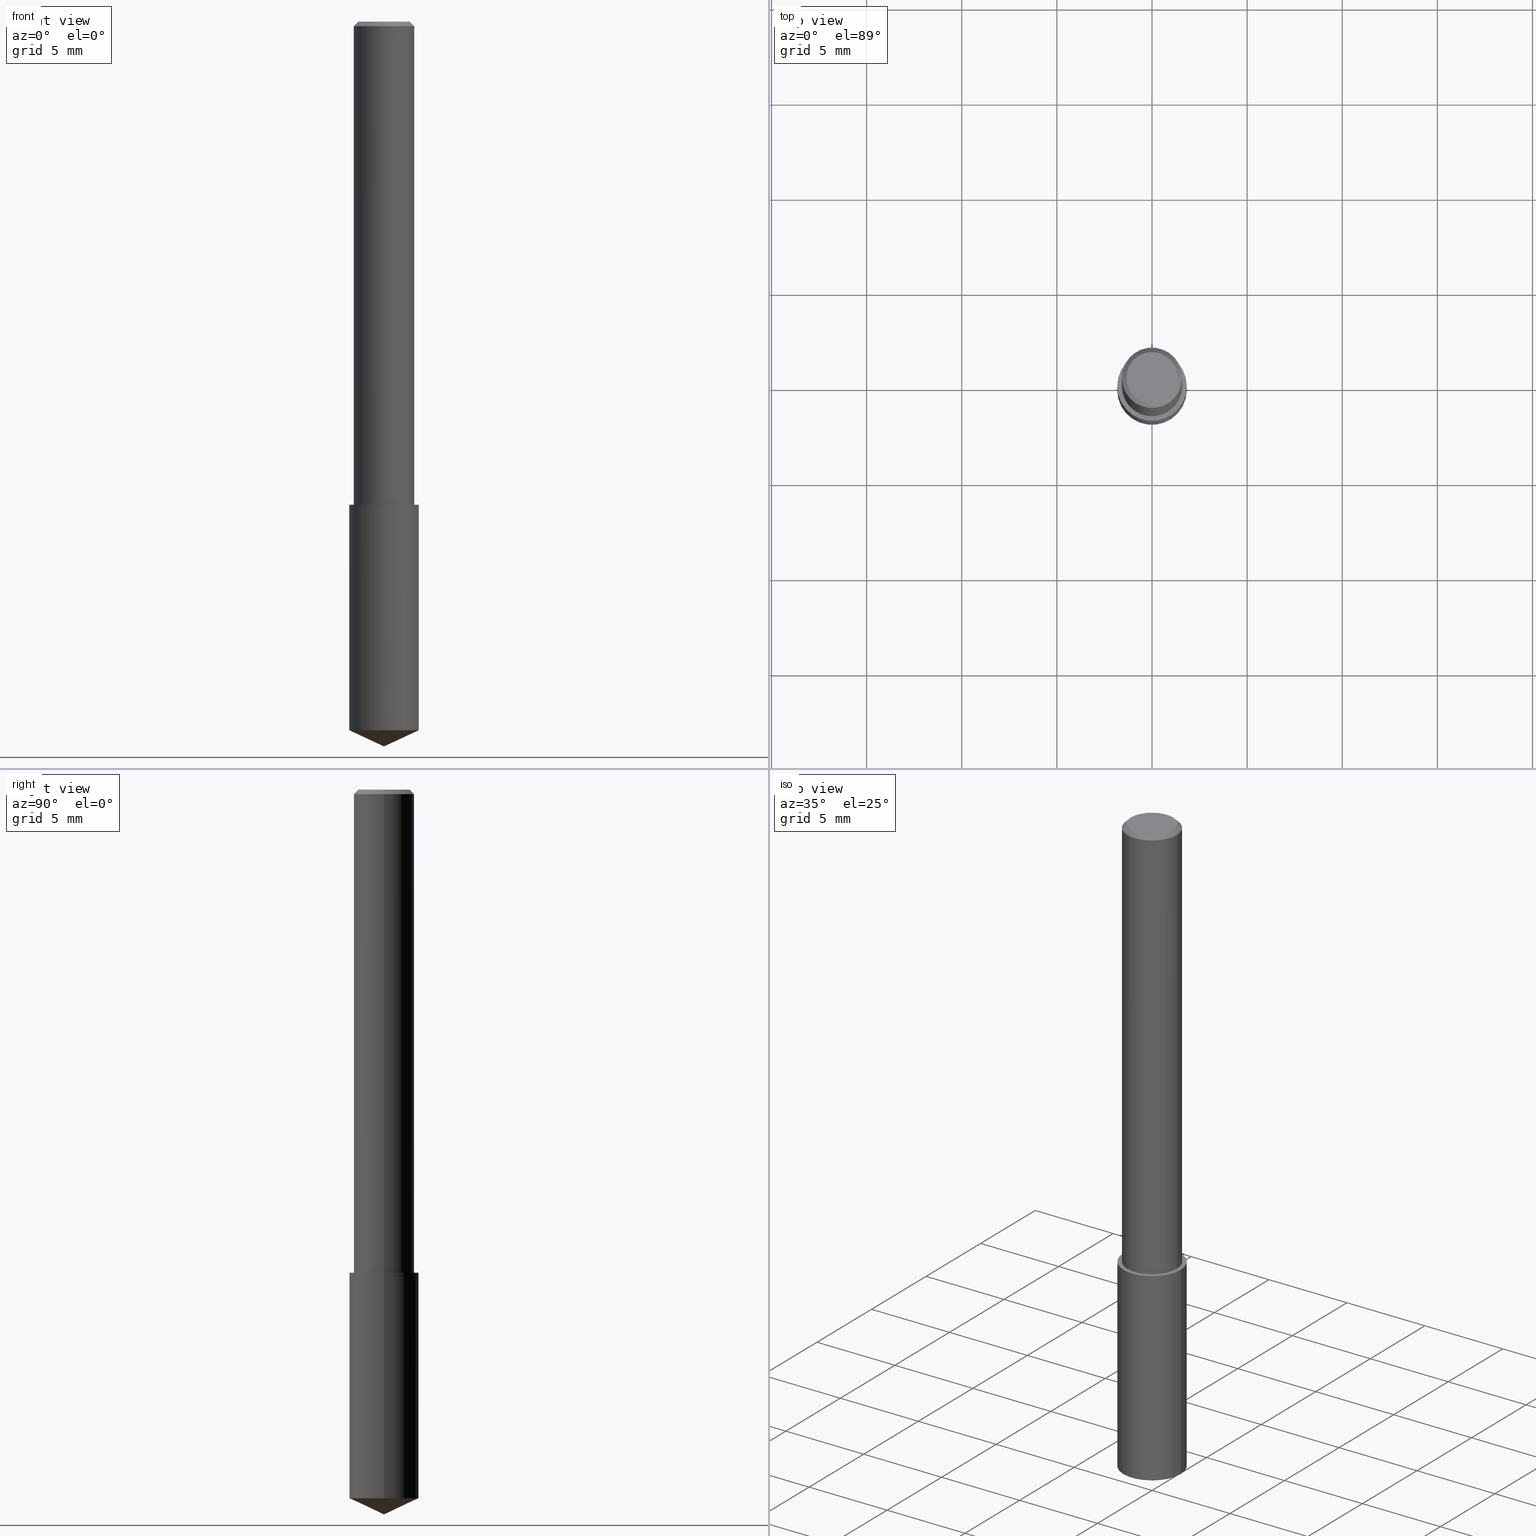
[diagram: canonical four-view strip — front | top / right | iso, engineering-drawing reading convention]
A machine part, canonical four-view strip (front | top / right | iso — engineering-drawing reading convention). The complete STEP part file that produces these views, byte-faithful:
ISO-10303-21;
HEADER;
FILE_DESCRIPTION (( 'STEP AP203' ),
    '1' );
FILE_NAME ('06083.STEP',
    '2024-04-30T18:19:49',
    ( '' ),
    ( '' ),
    'SwSTEP 2.0',
    'SolidWorks 2023',
    '' );
FILE_SCHEMA (( 'CONFIG_CONTROL_DESIGN' ));
ENDSEC;

DATA;
#1 = LOCAL_TIME ( 14, 19, 49.00000000000000000, #299 ) ;
#2 = DIRECTION ( 'NONE',  ( -2.445468806185136597E-29, 3.491481338843145583E-15, 1.000000000000000000 ) ) ;
#3 = DIRECTION ( 'NONE',  ( 1.000000000000000000, 0.000000000000000000, 0.000000000000000000 ) ) ;
#4 = CARTESIAN_POINT ( 'NONE',  ( -0.07199999999999999456, -2.979890569095874178E-15, -1.000000000000000222 ) ) ;
#5 = DIRECTION ( 'NONE',  ( -2.445468806185136597E-29, 3.491481338843145583E-15, 1.000000000000000000 ) ) ;
#6 = LOCAL_TIME ( 14, 19, 49.00000000000000000, #250 ) ;
#7 = EDGE_CURVE ( 'NONE', #258, #173, #156, .T. ) ;
#8 = ORIENTED_EDGE ( 'NONE', *, *, #32, .T. ) ;
#9 = LINE ( 'NONE', #42, #101 ) ;
#10 = CONICAL_SURFACE ( 'NONE', #50, 84.42940631927346828, 1.134464013796312010 ) ;
#11 = ADVANCED_FACE ( 'NONE', ( #48 ), #68, .F. ) ;
#12 = DIRECTION ( 'NONE',  ( 1.000000000000000000, -6.982962677686268288E-15, 0.000000000000000000 ) ) ;
#13 = DATE_AND_TIME ( #253, #276 ) ;
#14 = FACE_OUTER_BOUND ( 'NONE', #241, .T. ) ;
#15 = DIRECTION ( 'NONE',  ( 0.9063077870366489375, -4.853149677051365379E-15, 0.4226182617407013842 ) ) ;
#16 = EDGE_LOOP ( 'NONE', ( #314, #265, #149, #179 ) ) ;
#17 = FACE_OUTER_BOUND ( 'NONE', #20, .T. ) ;
#18 = ORIENTED_EDGE ( 'NONE', *, *, #69, .T. ) ;
#19 = CARTESIAN_POINT ( 'NONE',  ( -0.07199999999999999456, -3.794149142288778637E-15, -1.000000000000000222 ) ) ;
#20 = EDGE_LOOP ( 'NONE', ( #217, #237, #267, #339 ) ) ;
#21 = CC_DESIGN_PERSON_AND_ORGANIZATION_ASSIGNMENT ( #194, #106, ( #104 ) ) ;
#22 = CARTESIAN_POINT ( 'NONE',  ( -0.07200000000000000844, -4.608407715481682307E-15, -1.466425848612840088 ) ) ;
#23 = ORIENTED_EDGE ( 'NONE', *, *, #28, .F. ) ;
#24 = ORIENTED_EDGE ( 'NONE', *, *, #143, .F. ) ;
#25 = CARTESIAN_POINT ( 'NONE',  ( 3.586098669366267653E-29, -5.119998485228954106E-15, -1.466425848612840088 ) ) ;
#26 = VECTOR ( 'NONE', #77, 39.37007874015748143 ) ;
#27 =( CONVERSION_BASED_UNIT ( 'INCH', #186 ) LENGTH_UNIT ( ) NAMED_UNIT ( #191 ) );
#28 = EDGE_CURVE ( 'NONE', #319, #100, #242, .T. ) ;
#29 = AXIS2_PLACEMENT_3D ( 'NONE', #220, #2, #214 ) ;
#30 = DIRECTION ( 'NONE',  ( -2.445468806185136597E-29, 3.491481338843145583E-15, 1.000000000000000000 ) ) ;
#31 = LINE ( 'NONE', #320, #180 ) ;
#32 = EDGE_CURVE ( 'NONE', #284, #100, #340, .T. ) ;
#33 = VECTOR ( 'NONE', #238, 39.37007874015748854 ) ;
#34 = PRODUCT_DEFINITION_SHAPE ( 'NONE', 'NONE',  #324 ) ;
#35 = VECTOR ( 'NONE', #160, 39.37007874015748143 ) ;
#36 = FACE_OUTER_BOUND ( 'NONE', #219, .T. ) ;
#37 = COORDINATED_UNIVERSAL_TIME_OFFSET ( 5, 0, .BEHIND. ) ;
#38 = DATE_TIME_ROLE ( 'creation_date' ) ;
#39 = CARTESIAN_POINT ( 'NONE',  ( -9.261009624683002666E-28, 1.322226732217803884E-13, 37.87007874015748143 ) ) ;
#40 = DATE_AND_TIME ( #280, #134 ) ;
#41 = PERSON_AND_ORGANIZATION ( #146, #163 ) ;
#42 = CARTESIAN_POINT ( 'NONE',  ( 0.07199999999999999456, -3.994254651636557938E-15, -1.000000000000000222 ) ) ;
#43 = DIRECTION ( 'NONE',  ( -1.000000000000000000, 6.982962677686265922E-15, -4.876176775795935793E-29 ) ) ;
#44 = CARTESIAN_POINT ( 'NONE',  ( 2.445468806185137438E-29, -3.491481338843146371E-15, -1.000000000000000222 ) ) ;
#45 = DIRECTION ( 'NONE',  ( 2.438088387897960049E-29, -3.491481338843145188E-15, -1.000000000000000000 ) ) ;
#46 = EDGE_CURVE ( 'NONE', #173, #67, #317, .T. ) ;
#47 = EDGE_LOOP ( 'NONE', ( #294, #121, #24, #207 ) ) ;
#48 = FACE_OUTER_BOUND ( 'NONE', #147, .T. ) ;
#49 = CARTESIAN_POINT ( 'NONE',  ( -7.487088864773345706E-50, 1.068957861474247695E-35, 3.061616997868395197E-21 ) ) ;
#50 = AXIS2_PLACEMENT_3D ( 'NONE', #39, #62, #279 ) ;
#51 = ORIENTED_EDGE ( 'NONE', *, *, #32, .F. ) ;
#52 =( LENGTH_UNIT ( ) NAMED_UNIT ( * ) SI_UNIT ( $, .METRE. ) );
#53 = CARTESIAN_POINT ( 'NONE',  ( 0.000000000000000000, 0.000000000000000000, 0.000000000000000000 ) ) ;
#54 = AXIS2_PLACEMENT_3D ( 'NONE', #236, #259, #257 ) ;
#55 = PLANE ( 'NONE',  #211 ) ;
#56 = EDGE_CURVE ( 'NONE', #208, #173, #177, .T. ) ;
#57 = CARTESIAN_POINT ( 'NONE',  ( 3.668203209277704895E-29, -5.237222008264718177E-15, -1.500000000000000222 ) ) ;
#58 = AXIS2_PLACEMENT_3D ( 'NONE', #71, #178, #287 ) ;
#59 = PERSON_AND_ORGANIZATION ( #146, #163 ) ;
#60 = CARTESIAN_POINT ( 'NONE',  ( -9.261009624683002666E-28, 1.322226732217803884E-13, 37.87007874015748143 ) ) ;
#61 = CARTESIAN_POINT ( 'NONE',  ( 3.668203209277704895E-29, -5.237222008264718177E-15, -1.500000000000000222 ) ) ;
#62 = DIRECTION ( 'NONE',  ( -2.445468806185136597E-29, 3.491481338843145583E-15, 1.000000000000000000 ) ) ;
#63 = PERSON_AND_ORGANIZATION_ROLE ( 'classification_officer' ) ;
#64 = ADVANCED_FACE ( 'NONE', ( #266 ), #126, .T. ) ;
#65 = EDGE_CURVE ( 'NONE', #162, #208, #199, .T. ) ;
#66 = CALENDAR_DATE ( 2024, 30, 4 ) ;
#67 = VERTEX_POINT ( 'NONE', #275 ) ;
#68 = PLANE ( 'NONE',  #58 ) ;
#69 = EDGE_CURVE ( 'NONE', #100, #319, #79, .T. ) ;
#70 = ORIENTED_EDGE ( 'NONE', *, *, #128, .F. ) ;
#71 = CARTESIAN_POINT ( 'NONE',  ( 3.770218290967753020E-29, -1.594364676576296421E-15, -1.000000000000000222 ) ) ;
#72 = ORIENTED_EDGE ( 'NONE', *, *, #74, .F. ) ;
#73 =( NAMED_UNIT ( * ) SI_UNIT ( $, .STERADIAN. ) SOLID_ANGLE_UNIT ( ) );
#74 = EDGE_CURVE ( 'NONE', #100, #204, #190, .T. ) ;
#75 = MECHANICAL_CONTEXT ( 'NONE', #187, 'mechanical' ) ;
#76 = APPROVAL_PERSON_ORGANIZATION ( #59, #188, #138 ) ;
#77 = DIRECTION ( 'NONE',  ( -0.7071067811865453523, 2.468850131082234184E-15, -0.7071067811865496822 ) ) ;
#78 = CC_DESIGN_DATE_AND_TIME_ASSIGNMENT ( #329, #38, ( #324 ) ) ;
#79 = CIRCLE ( 'NONE', #29, 0.07200000000000000844 ) ;
#80 = VECTOR ( 'NONE', #151, 39.37007874015748143 ) ;
#81 = DIRECTION ( 'NONE',  ( 1.000000000000000000, -6.982962677686265133E-15, 0.000000000000000000 ) ) ;
#82 = AXIS2_PLACEMENT_3D ( 'NONE', #195, #133, #302 ) ;
#83 = CC_DESIGN_PERSON_AND_ORGANIZATION_ASSIGNMENT ( #109, #232, ( #324 ) ) ;
#84 = EDGE_CURVE ( 'NONE', #204, #289, #111, .T. ) ;
#85 = CARTESIAN_POINT ( 'NONE',  ( 0.07199999999999999456, -3.994254651636557149E-15, -1.000000000000000222 ) ) ;
#86 = FACE_OUTER_BOUND ( 'NONE', #310, .T. ) ;
#87 = AXIS2_PLACEMENT_3D ( 'NONE', #49, #264, #210 ) ;
#88 = PERSON_AND_ORGANIZATION ( #146, #163 ) ;
#89 = CARTESIAN_POINT ( 'NONE',  ( -7.487088864773345706E-50, 1.068957861474247695E-35, 3.061616997868395197E-21 ) ) ;
#90 = APPROVAL_DATE_TIME ( #226, #170 ) ;
#91 = CARTESIAN_POINT ( 'NONE',  ( 2.292627005798580623E-31, -3.273263755165470184E-17, -0.009375000000000060368 ) ) ;
#92 = FACE_OUTER_BOUND ( 'NONE', #244, .T. ) ;
#93 = ADVANCED_FACE ( 'NONE', ( #261 ), #117, .T. ) ;
#94 = DIRECTION ( 'NONE',  ( -2.445468806185136597E-29, 3.491481338843145583E-15, 1.000000000000000000 ) ) ;
#95 = CC_DESIGN_APPROVAL ( #170, ( #104 ) ) ;
#96 = ORIENTED_EDGE ( 'NONE', *, *, #167, .T. ) ;
#97 = EDGE_CURVE ( 'NONE', #157, #258, #288, .T. ) ;
#98 = ORIENTED_EDGE ( 'NONE', *, *, #218, .T. ) ;
#99 = DIRECTION ( 'NONE',  ( -2.445468806185136597E-29, 3.491481338843145583E-15, 1.000000000000000000 ) ) ;
#100 = VERTEX_POINT ( 'NONE', #22 ) ;
#101 = VECTOR ( 'NONE', #105, 39.37007874015748143 ) ;
#102 = CIRCLE ( 'NONE', #227, 0.06250000000000000000 ) ;
#103 = DIRECTION ( 'NONE',  ( 1.000000000000000000, -6.982962677686266711E-15, 4.876176775795935793E-29 ) ) ;
#104 = PRODUCT_DEFINITION_FORMATION_WITH_SPECIFIED_SOURCE ( 'ANY', '', #209, .NOT_KNOWN. ) ;
#105 = DIRECTION ( 'NONE',  ( -2.445468806185136877E-29, 3.491481338843145188E-15, 1.000000000000000000 ) ) ;
#106 = PERSON_AND_ORGANIZATION_ROLE ( 'creator' ) ;
#107 = CYLINDRICAL_SURFACE ( 'NONE', #82, 0.07199999999999999456 ) ;
#108 = LINE ( 'NONE', #225, #26 ) ;
#109 = PERSON_AND_ORGANIZATION ( #146, #163 ) ;
#110 = VECTOR ( 'NONE', #127, 39.37007874015748143 ) ;
#111 = CIRCLE ( 'NONE', #159, 0.07199999999999999456 ) ;
#112 = CARTESIAN_POINT ( 'NONE',  ( 2.292627005798580623E-31, -3.273263755165470184E-17, -0.009375000000000060368 ) ) ;
#113 = CARTESIAN_POINT ( 'NONE',  ( -0.05312499999999999861, 3.873362110279099094E-16, 3.061616995216862494E-21 ) ) ;
#114 = ORIENTED_EDGE ( 'NONE', *, *, #84, .T. ) ;
#115 = DIRECTION ( 'NONE',  ( 1.000000000000000000, -6.982962677686266711E-15, 4.876176628004948512E-29 ) ) ;
#116 = ORIENTED_EDGE ( 'NONE', *, *, #338, .F. ) ;
#117 = CYLINDRICAL_SURFACE ( 'NONE', #307, 0.07199999999999999456 ) ;
#118 = DIRECTION ( 'NONE',  ( -2.438088387897960049E-29, 3.491481338843145188E-15, 1.000000000000000000 ) ) ;
#119 = CIRCLE ( 'NONE', #129, 0.05312499999999999861 ) ;
#120 = CC_DESIGN_SECURITY_CLASSIFICATION ( #293, ( #104 ) ) ;
#121 = ORIENTED_EDGE ( 'NONE', *, *, #74, .T. ) ;
#122 = ORIENTED_EDGE ( 'NONE', *, *, #97, .T. ) ;
#123 = DIRECTION ( 'NONE',  ( 1.000000000000000000, -6.982962677686264344E-15, 0.000000000000000000 ) ) ;
#124 = ORIENTED_EDGE ( 'NONE', *, *, #292, .F. ) ;
#125 = AXIS2_PLACEMENT_3D ( 'NONE', #246, #136, #81 ) ;
#126 = CYLINDRICAL_SURFACE ( 'NONE', #168, 0.06250000000000006939 ) ;
#127 = DIRECTION ( 'NONE',  ( 0.7071067811865453523, -7.319954787623248157E-15, -0.7071067811865496822 ) ) ;
#128 = EDGE_CURVE ( 'NONE', #208, #162, #335, .T. ) ;
#129 = AXIS2_PLACEMENT_3D ( 'NONE', #89, #230, #115 ) ;
#130 = APPROVAL ( #327, 'UNSPECIFIED' ) ;
#131 = AXIS2_PLACEMENT_3D ( 'NONE', #243, #30, #269 ) ;
#132 = CLOSED_SHELL ( 'NONE', ( #93, #144, #297, #135, #11 ) ) ;
#133 = DIRECTION ( 'NONE',  ( -2.445468806185136597E-29, 3.491481338843145583E-15, 1.000000000000000000 ) ) ;
#134 = LOCAL_TIME ( 14, 19, 49.00000000000000000, #169 ) ;
#135 = ADVANCED_FACE ( 'NONE', ( #36 ), #107, .T. ) ;
#136 = DIRECTION ( 'NONE',  ( -2.445468806185136597E-29, 3.491481338843145583E-15, 1.000000000000000000 ) ) ;
#137 = APPROVAL_DATE_TIME ( #13, #188 ) ;
#138 = APPROVAL_ROLE ( '' ) ;
#139 = APPROVAL_ROLE ( '' ) ;
#140 = AXIS2_PLACEMENT_3D ( 'NONE', #60, #166, #12 ) ;
#141 = PLANE ( 'NONE',  #300 ) ;
#142 = ORIENTED_EDGE ( 'NONE', *, *, #65, .T. ) ;
#143 = EDGE_CURVE ( 'NONE', #289, #204, #256, .T. ) ;
#144 = ADVANCED_FACE ( 'NONE', ( #325 ), #10, .T. ) ;
#145 = ORIENTED_EDGE ( 'NONE', *, *, #273, .F. ) ;
#146 = PERSON ( 'UNSPECIFIED', 'UNSPECIFIED', 'UNSPECIFIED', ('UNSPECIFIED'), ('UNSPECIFIED'), ('UNSPECIFIED') ) ;
#147 = EDGE_LOOP ( 'NONE', ( #174, #114 ) ) ;
#148 = CALENDAR_DATE ( 2024, 30, 4 ) ;
#149 = ORIENTED_EDGE ( 'NONE', *, *, #46, .T. ) ;
#150 = UNCERTAINTY_MEASURE_WITH_UNIT (LENGTH_MEASURE( 1.000000000000000082E-05 ), #27, 'distance_accuracy_value', 'NONE');
#151 = DIRECTION ( 'NONE',  ( -2.445468806185136877E-29, 3.491481338843145188E-15, 1.000000000000000000 ) ) ;
#152 = DIRECTION ( 'NONE',  ( -2.445468806185136597E-29, 3.491481338843145583E-15, 1.000000000000000000 ) ) ;
#153 = CC_DESIGN_PERSON_AND_ORGANIZATION_ASSIGNMENT ( #304, #63, ( #293 ) ) ;
#154 = CARTESIAN_POINT ( 'NONE',  ( 2.445468806185137438E-29, -3.491481338843146371E-15, -1.000000000000000222 ) ) ;
#155 = CARTESIAN_POINT ( 'NONE',  ( 3.668203209277704895E-29, -5.237222008264718177E-15, -1.500000000000000222 ) ) ;
#156 = LINE ( 'NONE', #334, #110 ) ;
#157 = VERTEX_POINT ( 'NONE', #113 ) ;
#158 = CARTESIAN_POINT ( 'NONE',  ( 2.292627005798580623E-31, -3.273263755165470184E-17, -0.009375000000000060368 ) ) ;
#159 = AXIS2_PLACEMENT_3D ( 'NONE', #298, #222, #322 ) ;
#160 = DIRECTION ( 'NONE',  ( -2.445468806185136877E-29, 3.491481338843145188E-15, 1.000000000000000000 ) ) ;
#161 =( NAMED_UNIT ( * ) PLANE_ANGLE_UNIT ( ) SI_UNIT ( $, .RADIAN. ) );
#162 = VERTEX_POINT ( 'NONE', #248 ) ;
#163 = ORGANIZATION ( 'UNSPECIFIED', 'UNSPECIFIED', '' ) ;
#164 = DIRECTION ( 'NONE',  ( 1.000000000000000000, -6.982962677686264344E-15, 0.000000000000000000 ) ) ;
#165 = CC_DESIGN_APPROVAL ( #188, ( #293 ) ) ;
#166 = DIRECTION ( 'NONE',  ( -2.445468806185136597E-29, 3.491481338843145583E-15, 1.000000000000000000 ) ) ;
#167 = EDGE_CURVE ( 'NONE', #319, #289, #9, .T. ) ;
#168 = AXIS2_PLACEMENT_3D ( 'NONE', #183, #184, #291 ) ;
#169 = COORDINATED_UNIVERSAL_TIME_OFFSET ( 5, 0, .BEHIND. ) ;
#170 = APPROVAL ( #172, 'UNSPECIFIED' ) ;
#171 = AXIS2_PLACEMENT_3D ( 'NONE', #53, #316, #3 ) ;
#172 = APPROVAL_STATUS ( 'not_yet_approved' ) ;
#173 = VERTEX_POINT ( 'NONE', #296 ) ;
#174 = ORIENTED_EDGE ( 'NONE', *, *, #143, .T. ) ;
#175 = CALENDAR_DATE ( 2024, 30, 4 ) ;
#176 = AXIS2_PLACEMENT_3D ( 'NONE', #25, #152, #123 ) ;
#177 = LINE ( 'NONE', #286, #80 ) ;
#178 = DIRECTION ( 'NONE',  ( 2.438088387897960049E-29, -3.491481338843145188E-15, -1.000000000000000000 ) ) ;
#179 = ORIENTED_EDGE ( 'NONE', *, *, #315, .F. ) ;
#180 = VECTOR ( 'NONE', #326, 39.37007874015748143 ) ;
#181 = MANIFOLD_SOLID_BREP ( 'Body-Move/Copy2[1]', #132 ) ;
#182 = ORIENTED_EDGE ( 'NONE', *, *, #65, .F. ) ;
#183 = CARTESIAN_POINT ( 'NONE',  ( 0.000000000000000000, 0.000000000000000000, 0.000000000000000000 ) ) ;
#184 = DIRECTION ( 'NONE',  ( -2.445468806185136597E-29, 3.491481338843145583E-15, 1.000000000000000000 ) ) ;
#185 = CONICAL_SURFACE ( 'NONE', #193, 0.06250000000000000000, 0.7853981633974452814 ) ;
#186 = LENGTH_MEASURE_WITH_UNIT ( LENGTH_MEASURE( 0.02539999999999999897 ), #52 );
#187 = APPLICATION_CONTEXT ( 'configuration controlled 3d designs of mechanical parts and assemblies' ) ;
#188 = APPROVAL ( #277, 'UNSPECIFIED' ) ;
#189 = FACE_OUTER_BOUND ( 'NONE', #231, .T. ) ;
#190 = LINE ( 'NONE', #4, #35 ) ;
#191 = DIMENSIONAL_EXPONENTS ( 1.000000000000000000, 0.000000000000000000, 0.000000000000000000, 0.000000000000000000, 0.000000000000000000, 0.000000000000000000, 0.000000000000000000 ) ;
#192 = ADVANCED_FACE ( 'NONE', ( #189 ), #55, .F. ) ;
#193 = AXIS2_PLACEMENT_3D ( 'NONE', #112, #330, #303 ) ;
#194 = PERSON_AND_ORGANIZATION ( #146, #163 ) ;
#195 = CARTESIAN_POINT ( 'NONE',  ( 2.445468806185137438E-29, -3.491481338843146371E-15, -1.000000000000000222 ) ) ;
#196 = DIRECTION ( 'NONE',  ( 1.000000000000000000, -6.982962677686265922E-15, 4.876176775795935793E-29 ) ) ;
#197 = PERSON_AND_ORGANIZATION_ROLE ( 'design_supplier' ) ;
#198 = CC_DESIGN_PERSON_AND_ORGANIZATION_ASSIGNMENT ( #215, #270, ( #209 ) ) ;
#199 = CIRCLE ( 'NONE', #131, 0.06250000000000012490 ) ;
#200 = CYLINDRICAL_SURFACE ( 'NONE', #272, 0.06250000000000006939 ) ;
#201 = CONICAL_SURFACE ( 'NONE', #54, 0.06250000000000000000, 0.7853981633974452814 ) ;
#202 = CARTESIAN_POINT ( 'NONE',  ( 0.05312499999999999861, -4.129888592719939842E-16, 3.061617000609493422E-21 ) ) ;
#203 = APPROVAL_ROLE ( '' ) ;
#204 = VERTEX_POINT ( 'NONE', #19 ) ;
#205 = DIRECTION ( 'NONE',  ( 1.000000000000000000, -6.982962677686266711E-15, 0.000000000000000000 ) ) ;
#206 = DIRECTION ( 'NONE',  ( -2.445468806185136597E-29, 3.491481338843145583E-15, 1.000000000000000000 ) ) ;
#207 = ORIENTED_EDGE ( 'NONE', *, *, #167, .F. ) ;
#208 = VERTEX_POINT ( 'NONE', #301 ) ;
#209 = PRODUCT ( '06083', '06083', '', ( #75 ) ) ;
#210 = DIRECTION ( 'NONE',  ( 1.000000000000000000, -6.982962677686266711E-15, 4.876176628004948512E-29 ) ) ;
#211 = AXIS2_PLACEMENT_3D ( 'NONE', #323, #45, #43 ) ;
#212 = ORIENTED_EDGE ( 'NONE', *, *, #69, .F. ) ;
#213 = APPLICATION_PROTOCOL_DEFINITION ( 'international standard', 'config_control_design', 1994, #187 ) ;
#214 = DIRECTION ( 'NONE',  ( 1.000000000000000000, -6.982962677686264344E-15, 0.000000000000000000 ) ) ;
#215 = PERSON_AND_ORGANIZATION ( #146, #163 ) ;
#216 = DESIGN_CONTEXT ( 'detailed design', #283, 'design' ) ;
#217 = ORIENTED_EDGE ( 'NONE', *, *, #7, .F. ) ;
#218 = EDGE_CURVE ( 'NONE', #258, #157, #119, .T. ) ;
#219 = EDGE_LOOP ( 'NONE', ( #72, #18, #96, #337 ) ) ;
#220 = CARTESIAN_POINT ( 'NONE',  ( 3.586098669366267653E-29, -5.119998485228954106E-15, -1.466425848612840088 ) ) ;
#221 = APPROVAL_PERSON_ORGANIZATION ( #41, #130, #203 ) ;
#222 = DIRECTION ( 'NONE',  ( -2.445468806185136597E-29, 3.491481338843145583E-15, 1.000000000000000000 ) ) ;
#223 = DATE_TIME_ROLE ( 'classification_date' ) ;
#224 = SECURITY_CLASSIFICATION_LEVEL ( 'unclassified' ) ;
#225 = CARTESIAN_POINT ( 'NONE',  ( -0.06250000000000000000, 4.037025298037369984E-16, -0.009375000000000060368 ) ) ;
#226 = DATE_AND_TIME ( #175, #6 ) ;
#227 = AXIS2_PLACEMENT_3D ( 'NONE', #158, #5, #311 ) ;
#228 = CC_DESIGN_PERSON_AND_ORGANIZATION_ASSIGNMENT ( #255, #197, ( #104 ) ) ;
#229 = COORDINATED_UNIVERSAL_TIME_OFFSET ( 5, 0, .BEHIND. ) ;
#230 = DIRECTION ( 'NONE',  ( -2.445468806185136597E-29, 3.491481338843145583E-15, 1.000000000000000000 ) ) ;
#231 = EDGE_LOOP ( 'NONE', ( #122, #98 ) ) ;
#232 = PERSON_AND_ORGANIZATION_ROLE ( 'creator' ) ;
#233 = EDGE_LOOP ( 'NONE', ( #145, #8, #23 ) ) ;
#234 = CONICAL_SURFACE ( 'NONE', #140, 84.42940631927346828, 1.134464013796312010 ) ;
#235 = CARTESIAN_POINT ( 'NONE',  ( 2.445468806185137438E-29, -3.491481338843146371E-15, -1.000000000000000222 ) ) ;
#236 = CARTESIAN_POINT ( 'NONE',  ( 2.292627005798580623E-31, -3.273263755165470184E-17, -0.009375000000000060368 ) ) ;
#237 = ORIENTED_EDGE ( 'NONE', *, *, #97, .F. ) ;
#238 = DIRECTION ( 'NONE',  ( -0.9063077870366489375, 7.915267918739014631E-15, 0.4226182617407013842 ) ) ;
#239 = ORIENTED_EDGE ( 'NONE', *, *, #292, .T. ) ;
#240 = ORIENTED_EDGE ( 'NONE', *, *, #56, .F. ) ;
#241 = EDGE_LOOP ( 'NONE', ( #70, #182 ) ) ;
#242 = CIRCLE ( 'NONE', #176, 0.07200000000000000844 ) ;
#243 = CARTESIAN_POINT ( 'NONE',  ( 2.445468806185137438E-29, -3.491481338843146371E-15, -1.000000000000000222 ) ) ;
#244 = EDGE_LOOP ( 'NONE', ( #309, #239, #262, #240 ) ) ;
#245 = CARTESIAN_POINT ( 'NONE',  ( 0.07200000000000000844, -5.622771798022365278E-15, -1.466425848612840088 ) ) ;
#246 = CARTESIAN_POINT ( 'NONE',  ( 2.445468806185136877E-29, -3.491481338843145977E-15, -1.000000000000000222 ) ) ;
#247 = APPROVAL_PERSON_ORGANIZATION ( #88, #170, #139 ) ;
#248 = CARTESIAN_POINT ( 'NONE',  ( -0.06250000000000012490, -1.318017778347335489E-15, -1.000000000000000222 ) ) ;
#249 = SHAPE_DEFINITION_REPRESENTATION ( #34, #336 ) ;
#250 = COORDINATED_UNIVERSAL_TIME_OFFSET ( 5, 0, .BEHIND. ) ;
#251 = DIRECTION ( 'NONE',  ( -2.445468806185136597E-29, 3.491481338843145583E-15, 1.000000000000000000 ) ) ;
#252 = PRODUCT_RELATED_PRODUCT_CATEGORY ( 'detail', '', ( #209 ) ) ;
#253 = CALENDAR_DATE ( 2024, 30, 4 ) ;
#254 = FACE_OUTER_BOUND ( 'NONE', #16, .T. ) ;
#255 = PERSON_AND_ORGANIZATION ( #146, #163 ) ;
#256 = CIRCLE ( 'NONE', #125, 0.07199999999999999456 ) ;
#257 = DIRECTION ( 'NONE',  ( -1.000000000000000000, 6.982962677686266711E-15, 0.000000000000000000 ) ) ;
#258 = VERTEX_POINT ( 'NONE', #202 ) ;
#259 = DIRECTION ( 'NONE',  ( 2.445468806185136597E-29, -3.491481338843145583E-15, -1.000000000000000000 ) ) ;
#260 = ADVANCED_FACE ( 'NONE', ( #14 ), #141, .F. ) ;
#261 = FACE_OUTER_BOUND ( 'NONE', #47, .T. ) ;
#262 = ORIENTED_EDGE ( 'NONE', *, *, #46, .F. ) ;
#263 = ADVANCED_FACE ( 'NONE', ( #254 ), #185, .T. ) ;
#264 = DIRECTION ( 'NONE',  ( -2.445468806185136597E-29, 3.491481338843145583E-15, 1.000000000000000000 ) ) ;
#265 = ORIENTED_EDGE ( 'NONE', *, *, #7, .T. ) ;
#266 = FACE_OUTER_BOUND ( 'NONE', #333, .T. ) ;
#267 = ORIENTED_EDGE ( 'NONE', *, *, #315, .T. ) ;
#268 = LOCAL_TIME ( 14, 19, 49.00000000000000000, #229 ) ;
#269 = DIRECTION ( 'NONE',  ( 1.000000000000000000, -6.982962677686264344E-15, 0.000000000000000000 ) ) ;
#270 = PERSON_AND_ORGANIZATION_ROLE ( 'design_owner' ) ;
#271 = ADVANCED_FACE ( 'NONE', ( #17 ), #201, .T. ) ;
#272 = AXIS2_PLACEMENT_3D ( 'NONE', #305, #94, #103 ) ;
#273 = EDGE_CURVE ( 'NONE', #284, #319, #331, .T. ) ;
#274 = CLOSED_SHELL ( 'NONE', ( #263, #278, #260, #64, #271, #192 ) ) ;
#275 = CARTESIAN_POINT ( 'NONE',  ( -0.06250000000000000000, -1.318017778347336672E-15, -0.009375000000000060368 ) ) ;
#276 = LOCAL_TIME ( 14, 19, 49.00000000000000000, #37 ) ;
#277 = APPROVAL_STATUS ( 'not_yet_approved' ) ;
#278 = ADVANCED_FACE ( 'NONE', ( #92 ), #200, .T. ) ;
#279 = DIRECTION ( 'NONE',  ( 1.000000000000000000, -6.982962677686268288E-15, 0.000000000000000000 ) ) ;
#280 = CALENDAR_DATE ( 2024, 30, 4 ) ;
#281 = VECTOR ( 'NONE', #15, 39.37007874015748854 ) ;
#282 = ORIENTED_EDGE ( 'NONE', *, *, #273, .T. ) ;
#283 = APPLICATION_CONTEXT ( 'configuration controlled 3d designs of mechanical parts and assemblies' ) ;
#284 = VERTEX_POINT ( 'NONE', #57 ) ;
#285 = DIRECTION ( 'NONE',  ( 1.000000000000000000, -6.982962677686265133E-15, 0.000000000000000000 ) ) ;
#286 = CARTESIAN_POINT ( 'NONE',  ( 0.06250000000000006939, -4.364351673553921624E-16, 3.047610484872463374E-30 ) ) ;
#287 = DIRECTION ( 'NONE',  ( -1.000000000000000000, 6.982962677686265922E-15, -4.876176775795935793E-29 ) ) ;
#288 = CIRCLE ( 'NONE', #87, 0.05312499999999999861 ) ;
#289 = VERTEX_POINT ( 'NONE', #85 ) ;
#290 = ORIENTED_EDGE ( 'NONE', *, *, #56, .T. ) ;
#291 = DIRECTION ( 'NONE',  ( 1.000000000000000000, -6.982962677686266711E-15, 4.876176775795935793E-29 ) ) ;
#292 = EDGE_CURVE ( 'NONE', #162, #67, #31, .T. ) ;
#293 = SECURITY_CLASSIFICATION ( '', '', #224 ) ;
#294 = ORIENTED_EDGE ( 'NONE', *, *, #28, .T. ) ;
#295 = MANIFOLD_SOLID_BREP ( 'Body-Move/Copy2[2]', #274 ) ;
#296 = CARTESIAN_POINT ( 'NONE',  ( 0.06250000000000000000, -4.691678049070463404E-16, -0.009375000000000060368 ) ) ;
#297 = ADVANCED_FACE ( 'NONE', ( #86 ), #234, .T. ) ;
#298 = CARTESIAN_POINT ( 'NONE',  ( 2.445468806185136877E-29, -3.491481338843145977E-15, -1.000000000000000222 ) ) ;
#299 = COORDINATED_UNIVERSAL_TIME_OFFSET ( 5, 0, .BEHIND. ) ;
#300 = AXIS2_PLACEMENT_3D ( 'NONE', #44, #118, #196 ) ;
#301 = CARTESIAN_POINT ( 'NONE',  ( 0.06250000000000012490, -3.927916506198539224E-15, -1.000000000000000222 ) ) ;
#302 = DIRECTION ( 'NONE',  ( 1.000000000000000000, -6.982962677686265133E-15, 0.000000000000000000 ) ) ;
#303 = DIRECTION ( 'NONE',  ( -1.000000000000000000, 6.982962677686266711E-15, 0.000000000000000000 ) ) ;
#304 = PERSON_AND_ORGANIZATION ( #146, #163 ) ;
#305 = CARTESIAN_POINT ( 'NONE',  ( 0.000000000000000000, 0.000000000000000000, 0.000000000000000000 ) ) ;
#306 = DATE_AND_TIME ( #148, #1 ) ;
#307 = AXIS2_PLACEMENT_3D ( 'NONE', #235, #206, #285 ) ;
#308 = APPROVAL_DATE_TIME ( #306, #130 ) ;
#309 = ORIENTED_EDGE ( 'NONE', *, *, #128, .T. ) ;
#310 = EDGE_LOOP ( 'NONE', ( #51, #282, #212 ) ) ;
#311 = DIRECTION ( 'NONE',  ( 1.000000000000000000, -6.982962677686266711E-15, 0.000000000000000000 ) ) ;
#312 = AXIS2_PLACEMENT_3D ( 'NONE', #91, #99, #205 ) ;
#313 = CC_DESIGN_DATE_AND_TIME_ASSIGNMENT ( #40, #223, ( #293 ) ) ;
#314 = ORIENTED_EDGE ( 'NONE', *, *, #218, .F. ) ;
#315 = EDGE_CURVE ( 'NONE', #157, #67, #108, .T. ) ;
#316 = DIRECTION ( 'NONE',  ( 0.000000000000000000, 0.000000000000000000, 1.000000000000000000 ) ) ;
#317 = CIRCLE ( 'NONE', #312, 0.06250000000000000000 ) ;
#318 = CC_DESIGN_APPROVAL ( #130, ( #324 ) ) ;
#319 = VERTEX_POINT ( 'NONE', #245 ) ;
#320 = CARTESIAN_POINT ( 'NONE',  ( -0.06250000000000006939, 4.440892098500631092E-16, -3.074334431409319267E-30 ) ) ;
#321 =( GEOMETRIC_REPRESENTATION_CONTEXT ( 3 ) GLOBAL_UNCERTAINTY_ASSIGNED_CONTEXT ( ( #150 ) ) GLOBAL_UNIT_ASSIGNED_CONTEXT ( ( #27, #161, #73 ) ) REPRESENTATION_CONTEXT ( 'NONE', 'WORKASPACE' ) );
#322 = DIRECTION ( 'NONE',  ( 1.000000000000000000, -6.982962677686265133E-15, 0.000000000000000000 ) ) ;
#323 = CARTESIAN_POINT ( 'NONE',  ( -3.743544432386672853E-50, 5.344789307371238476E-36, 1.530808498934197599E-21 ) ) ;
#324 = PRODUCT_DEFINITION ( 'UNKNOWN', '', #104, #216 ) ;
#325 = FACE_OUTER_BOUND ( 'NONE', #233, .T. ) ;
#326 = DIRECTION ( 'NONE',  ( -2.445468806185136877E-29, 3.491481338843145188E-15, 1.000000000000000000 ) ) ;
#327 = APPROVAL_STATUS ( 'not_yet_approved' ) ;
#328 = AXIS2_PLACEMENT_3D ( 'NONE', #154, #251, #164 ) ;
#329 = DATE_AND_TIME ( #66, #268 ) ;
#330 = DIRECTION ( 'NONE',  ( 2.445468806185136597E-29, -3.491481338843145583E-15, -1.000000000000000000 ) ) ;
#331 = LINE ( 'NONE', #61, #281 ) ;
#332 = APPLICATION_PROTOCOL_DEFINITION ( 'international standard', 'config_control_design', 1994, #283 ) ;
#333 = EDGE_LOOP ( 'NONE', ( #124, #142, #290, #116 ) ) ;
#334 = CARTESIAN_POINT ( 'NONE',  ( 0.06250000000000000000, -4.615137624123753937E-16, -0.009375000000000060368 ) ) ;
#335 = CIRCLE ( 'NONE', #328, 0.06250000000000012490 ) ;
#336 = ADVANCED_BREP_SHAPE_REPRESENTATION ( '06083', ( #181, #295, #171 ), #321 ) ;
#337 = ORIENTED_EDGE ( 'NONE', *, *, #84, .F. ) ;
#338 = EDGE_CURVE ( 'NONE', #67, #173, #102, .T. ) ;
#339 = ORIENTED_EDGE ( 'NONE', *, *, #338, .T. ) ;
#340 = LINE ( 'NONE', #155, #33 ) ;
ENDSEC;
END-ISO-10303-21;
